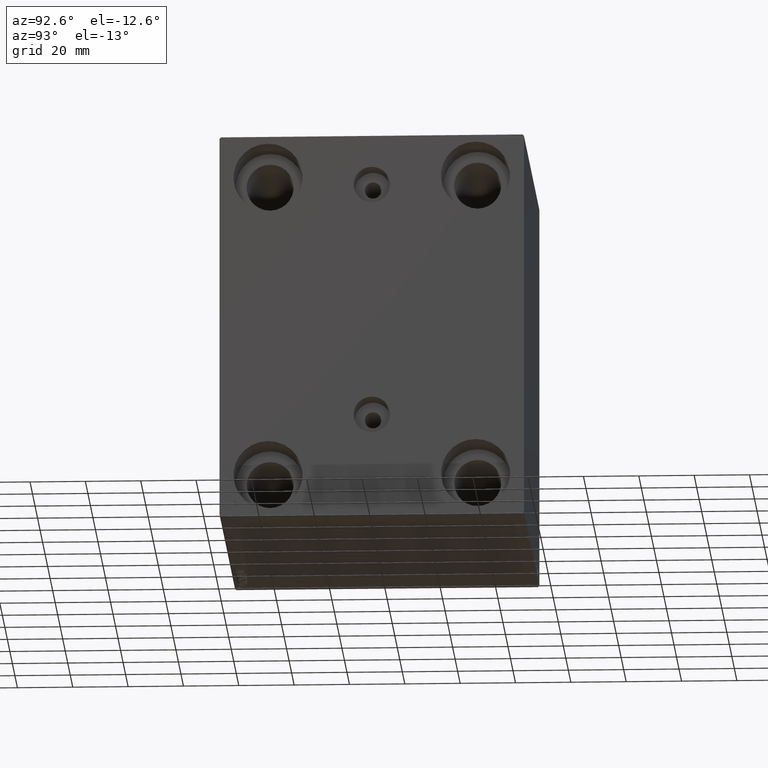
[diagram: clean part render]
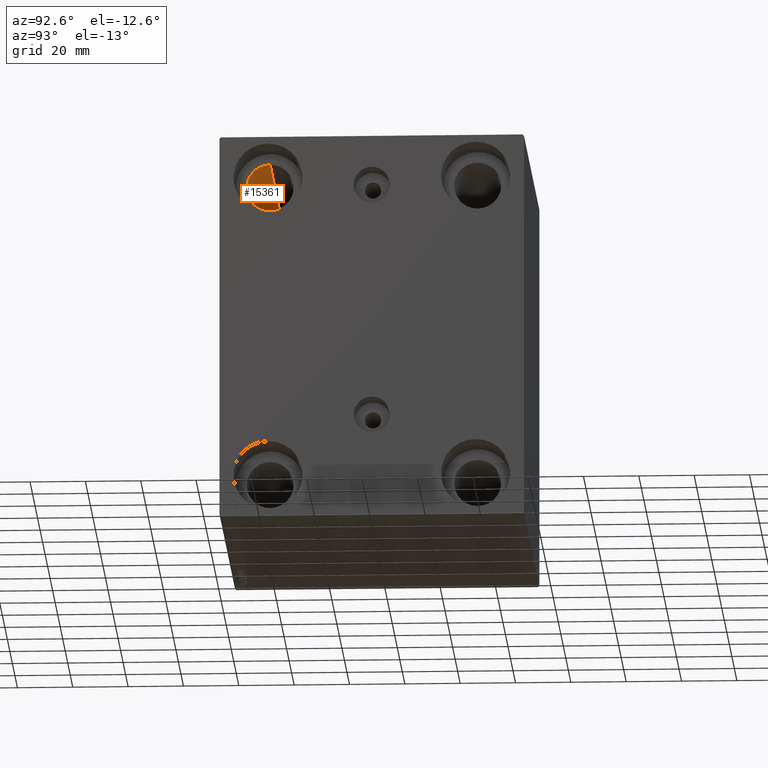
[diagram: same view with one face highlighted and labeled with its STEP entity id]
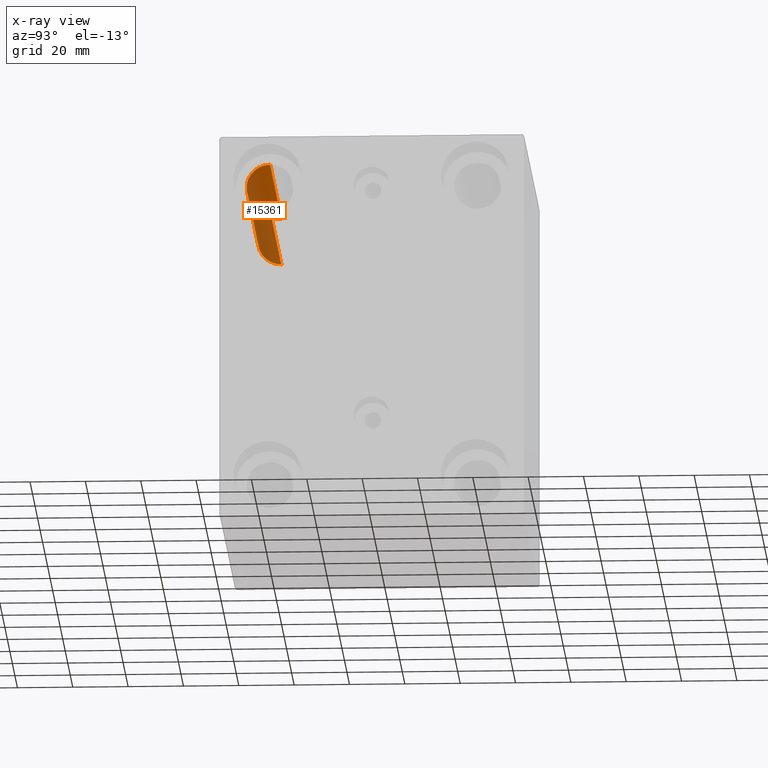
[diagram: x-ray of the same camera — body ghosted, the highlighted face saturated]
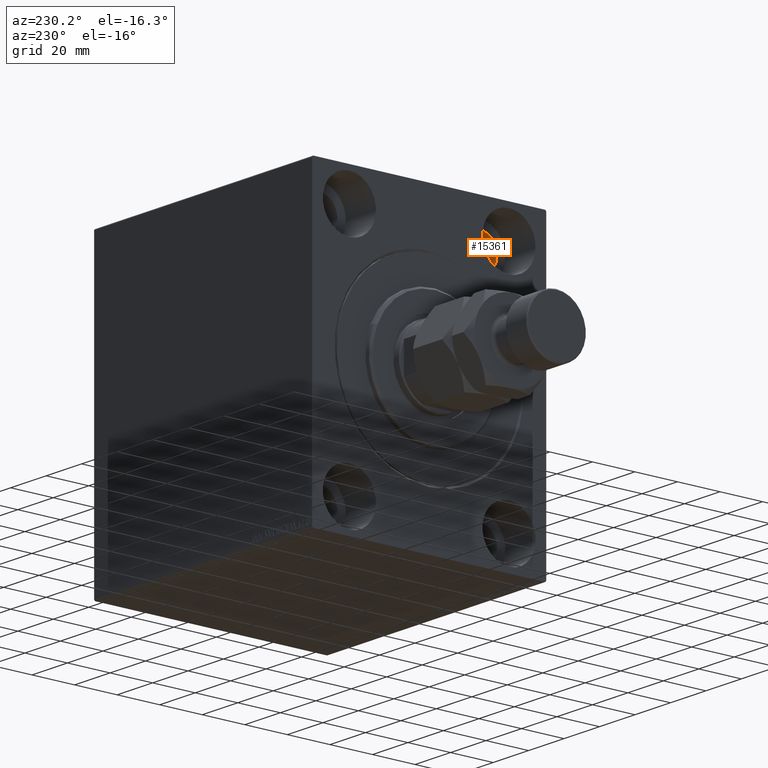
[diagram: same view with one face highlighted and labeled with its STEP entity id]
A machine part, auxiliary view. The second image highlights one B-rep face of the part: STEP entity #15361.
The next image is the same camera in x-ray: the body ghosted, the highlighted face saturated — about 44% of this face is hidden behind the body in this view.
A second angle (auxiliary view) of the same face is appended — the face is thin or edge-on in the first view.
In plain terms, the highlighted cylindrical surface (edge-blend (fillet) strip) has radius 8.5 mm, axis along (-1, -0, -0).
Its self-contained STEP definition (entity closure, byte-faithful):
#663 = EDGE_CURVE ( 'NONE', #27829, #10731, #30561, .T. ) ;
#1164 = CARTESIAN_POINT ( 'NONE',  ( 123.0000000000000000, -37.50000000000000711, 46.50000000000001421 ) ) ;
#2626 = ORIENTED_EDGE ( 'NONE', *, *, #663, .F. ) ;
#4503 = VECTOR ( 'NONE', #11720, 1000.000000000000000 ) ;
#5334 = DIRECTION ( 'NONE',  ( 0.000000000000000000, 0.000000000000000000, -1.000000000000000000 ) ) ;
#7558 = CARTESIAN_POINT ( 'NONE',  ( 106.0000000000000000, -37.50000000000000711, 46.50000000000001421 ) ) ;
#7905 = CARTESIAN_POINT ( 'NONE',  ( 17.00000000000000000, -37.50000000000000711, 55.00000000000000711 ) ) ;
#10731 = VERTEX_POINT ( 'NONE', #32482 ) ;
#11662 = AXIS2_PLACEMENT_3D ( 'NONE', #7905, #18255, #42441 ) ;
#11720 = DIRECTION ( 'NONE',  ( -1.000000000000000000, -0.000000000000000000, -0.000000000000000000 ) ) ;
#12484 = DIRECTION ( 'NONE',  ( 0.000000000000000000, 0.000000000000000000, 1.000000000000000000 ) ) ;
#13863 = CIRCLE ( 'NONE', #11662, 8.499999999999992895 ) ;
#14926 = CARTESIAN_POINT ( 'NONE',  ( 123.0000000000000000, -37.50000000000000711, 63.50000000000000000 ) ) ;
#15361 = ADVANCED_FACE ( 'NONE', ( #27183 ), #41024, .F. ) ;
#16169 = CARTESIAN_POINT ( 'NONE',  ( 123.0000000000000000, -37.50000000000000711, 55.00000000000000711 ) ) ;
#17356 = VECTOR ( 'NONE', #25306, 1000.000000000000000 ) ;
#18255 = DIRECTION ( 'NONE',  ( -1.000000000000000000, 0.000000000000000000, 0.000000000000000000 ) ) ;
#20112 = EDGE_CURVE ( 'NONE', #27829, #29863, #26222, .T. ) ;
#20997 = AXIS2_PLACEMENT_3D ( 'NONE', #37072, #43330, #5334 ) ;
#23070 = ORIENTED_EDGE ( 'NONE', *, *, #27364, .T. ) ;
#25306 = DIRECTION ( 'NONE',  ( -1.000000000000000000, -0.000000000000000000, -0.000000000000000000 ) ) ;
#25339 = ORIENTED_EDGE ( 'NONE', *, *, #34989, .F. ) ;
#26222 = LINE ( 'NONE', #1164, #17356 ) ;
#27183 = FACE_OUTER_BOUND ( 'NONE', #41428, .T. ) ;
#27364 = EDGE_CURVE ( 'NONE', #29863, #39543, #13863, .T. ) ;
#27829 = VERTEX_POINT ( 'NONE', #7558 ) ;
#29863 = VERTEX_POINT ( 'NONE', #40345 ) ;
#30561 = CIRCLE ( 'NONE', #20997, 8.499999999999992895 ) ;
#32482 = CARTESIAN_POINT ( 'NONE',  ( 106.0000000000000000, -37.50000000000000711, 63.50000000000000000 ) ) ;
#34371 = ORIENTED_EDGE ( 'NONE', *, *, #20112, .T. ) ;
#34989 = EDGE_CURVE ( 'NONE', #10731, #39543, #42351, .T. ) ;
#37072 = CARTESIAN_POINT ( 'NONE',  ( 106.0000000000000000, -37.50000000000000711, 55.00000000000000711 ) ) ;
#37088 = DIRECTION ( 'NONE',  ( -1.000000000000000000, -0.000000000000000000, -0.000000000000000000 ) ) ;
#37804 = AXIS2_PLACEMENT_3D ( 'NONE', #16169, #37088, #12484 ) ;
#39543 = VERTEX_POINT ( 'NONE', #44653 ) ;
#40345 = CARTESIAN_POINT ( 'NONE',  ( 17.00000000000000000, -37.50000000000000711, 46.50000000000001421 ) ) ;
#41024 = CYLINDRICAL_SURFACE ( 'NONE', #37804, 8.499999999999992895 ) ;
#41428 = EDGE_LOOP ( 'NONE', ( #2626, #34371, #23070, #25339 ) ) ;
#42351 = LINE ( 'NONE', #14926, #4503 ) ;
#42441 = DIRECTION ( 'NONE',  ( 0.000000000000000000, 0.000000000000000000, 1.000000000000000000 ) ) ;
#43330 = DIRECTION ( 'NONE',  ( -1.000000000000000000, -0.000000000000000000, -0.000000000000000000 ) ) ;
#44653 = CARTESIAN_POINT ( 'NONE',  ( 17.00000000000000000, -37.50000000000000711, 63.50000000000000000 ) ) ;